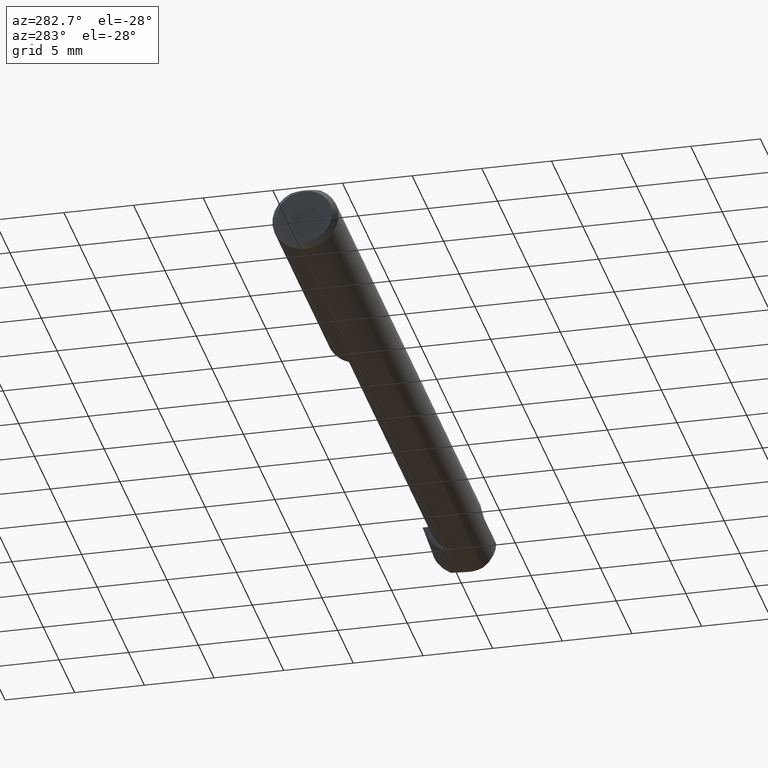
[diagram: clean part render]
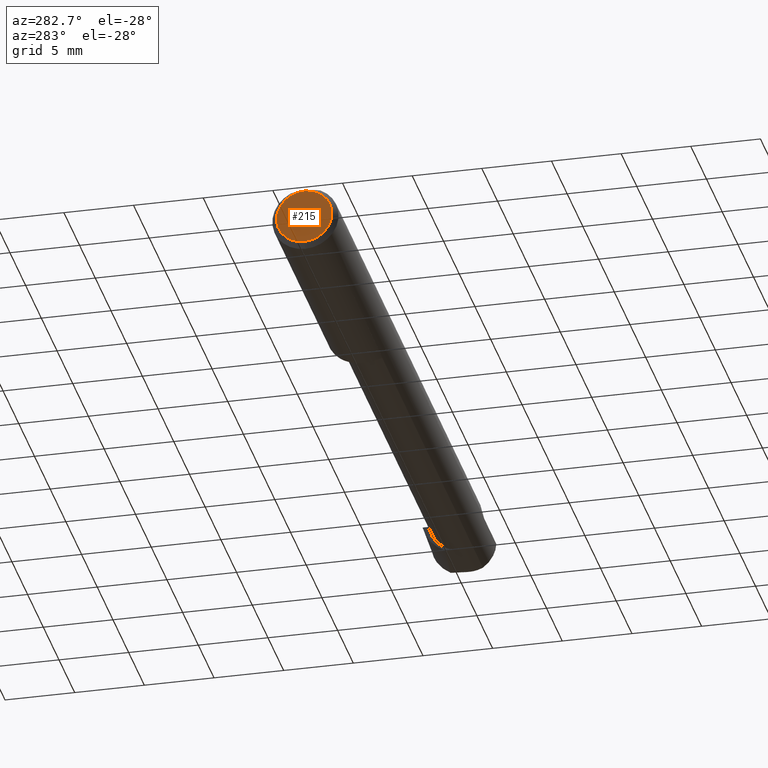
[diagram: same view with one face highlighted and labeled with its STEP entity id]
A machine part, auxiliary view. The second image highlights one B-rep face of the part: STEP entity #215.
In plain terms, the highlighted planar face has unit normal (1, 0, 0).
Its self-contained STEP definition (entity closure, byte-faithful):
#1 = DIRECTION ( 'NONE',  ( 0.000000000000000000, 0.000000000000000000, -1.000000000000000000 ) ) ;
#82 = PLANE ( 'NONE',  #539 ) ;
#140 = CARTESIAN_POINT ( 'NONE',  ( 0.000000000000000000, 0.000000000000000000, 0.000000000000000000 ) ) ;
#172 = AXIS2_PLACEMENT_3D ( 'NONE', #177, #413, #567 ) ;
#177 = CARTESIAN_POINT ( 'NONE',  ( 0.000000000000000000, 0.000000000000000000, 0.000000000000000000 ) ) ;
#202 = CARTESIAN_POINT ( 'NONE',  ( 0.000000000000000000, 1.054420894065869948E-17, 0.07859999999999980891 ) ) ;
#215 = ADVANCED_FACE ( 'NONE', ( #565 ), #82, .F. ) ;
#233 = VERTEX_POINT ( 'NONE', #624 ) ;
#249 = ORIENTED_EDGE ( 'NONE', *, *, #585, .T. ) ;
#251 = CIRCLE ( 'NONE', #172, 0.07859999999999980891 ) ;
#271 = AXIS2_PLACEMENT_3D ( 'NONE', #140, #375, #464 ) ;
#287 = VERTEX_POINT ( 'NONE', #202 ) ;
#372 = DIRECTION ( 'NONE',  ( 1.000000000000000000, 0.000000000000000000, 0.000000000000000000 ) ) ;
#375 = DIRECTION ( 'NONE',  ( -1.000000000000000000, -0.000000000000000000, -0.000000000000000000 ) ) ;
#377 = EDGE_LOOP ( 'NONE', ( #249, #542 ) ) ;
#413 = DIRECTION ( 'NONE',  ( -1.000000000000000000, -0.000000000000000000, -0.000000000000000000 ) ) ;
#464 = DIRECTION ( 'NONE',  ( 0.000000000000000000, 0.000000000000000000, -1.000000000000000000 ) ) ;
#501 = CIRCLE ( 'NONE', #271, 0.07859999999999980891 ) ;
#539 = AXIS2_PLACEMENT_3D ( 'NONE', #577, #372, #1 ) ;
#542 = ORIENTED_EDGE ( 'NONE', *, *, #552, .T. ) ;
#552 = EDGE_CURVE ( 'NONE', #287, #233, #251, .T. ) ;
#565 = FACE_OUTER_BOUND ( 'NONE', #377, .T. ) ;
#567 = DIRECTION ( 'NONE',  ( 0.000000000000000000, 0.000000000000000000, -1.000000000000000000 ) ) ;
#577 = CARTESIAN_POINT ( 'NONE',  ( 0.000000000000000000, 0.000000000000000000, 0.000000000000000000 ) ) ;
#585 = EDGE_CURVE ( 'NONE', #233, #287, #501, .T. ) ;
#624 = CARTESIAN_POINT ( 'NONE',  ( 0.000000000000000000, 0.000000000000000000, -0.07859999999999980891 ) ) ;